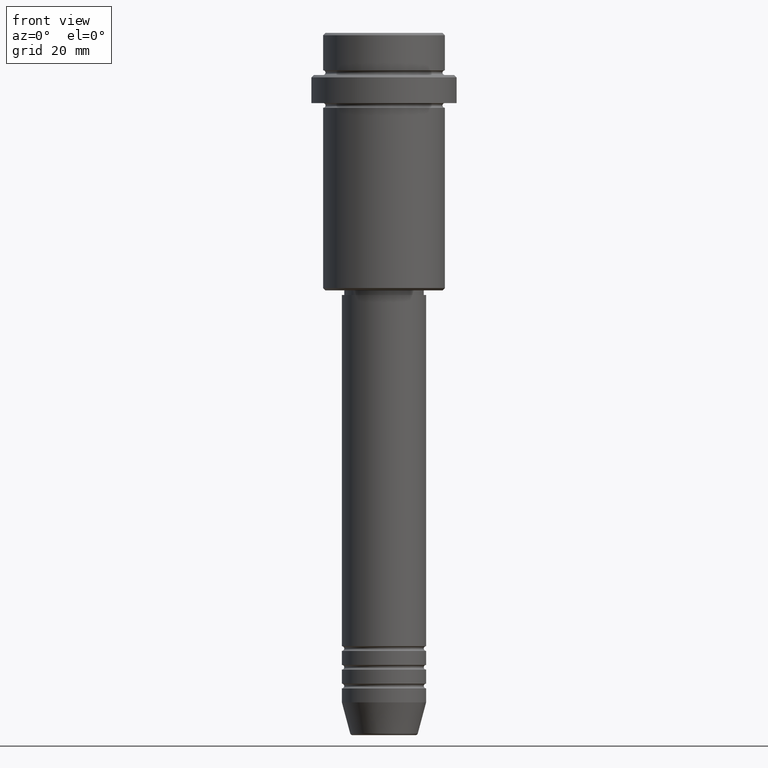
[diagram: clean part render]
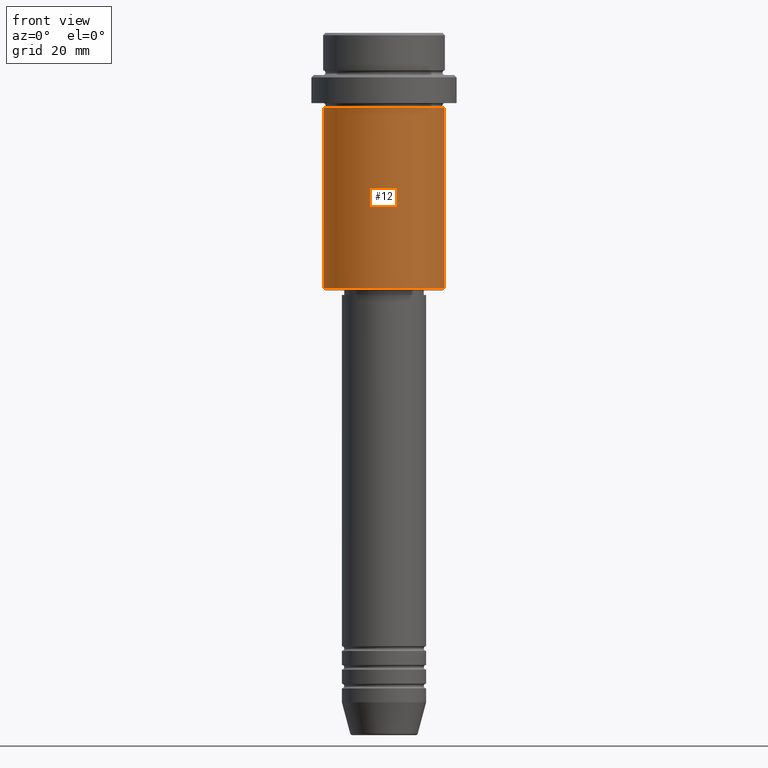
[diagram: same view with one face highlighted and labeled with its STEP entity id]
A machine part, front view. The second image highlights one B-rep face of the part: STEP entity #12.
In plain terms, the highlighted cylindrical surface (partial cylindrical patch) has radius 13 mm, axis along (-0, -0, 1).
Its self-contained STEP definition (entity closure, byte-faithful):
#3 = CARTESIAN_POINT ( 'NONE',  ( 0.000000000000000000, 0.000000000000000000, -15.99999999999997335 ) ) ;
#12 = ADVANCED_FACE ( 'NONE', ( #411 ), #308, .T. ) ;
#64 = VERTEX_POINT ( 'NONE', #587 ) ;
#106 = EDGE_CURVE ( 'NONE', #736, #947, #441, .T. ) ;
#116 = EDGE_CURVE ( 'NONE', #64, #736, #504, .T. ) ;
#170 = CARTESIAN_POINT ( 'NONE',  ( 0.000000000000000000, 0.000000000000000000, -54.49999999999996447 ) ) ;
#255 = VECTOR ( 'NONE', #597, 1000.000000000000000 ) ;
#261 = DIRECTION ( 'NONE',  ( -1.000000000000000000, 0.000000000000000000, 0.000000000000000000 ) ) ;
#287 = DIRECTION ( 'NONE',  ( -0.000000000000000000, -0.000000000000000000, 1.000000000000000000 ) ) ;
#308 = CYLINDRICAL_SURFACE ( 'NONE', #1208, 13.00000000000000000 ) ;
#342 = DIRECTION ( 'NONE',  ( 1.000000000000000000, 0.000000000000000000, 0.000000000000000000 ) ) ;
#360 = CARTESIAN_POINT ( 'NONE',  ( 0.000000000000000000, 0.000000000000000000, 0.000000000000000000 ) ) ;
#411 = FACE_OUTER_BOUND ( 'NONE', #1395, .T. ) ;
#441 = LINE ( 'NONE', #942, #1001 ) ;
#504 = CIRCLE ( 'NONE', #609, 13.00000000000000000 ) ;
#535 = CARTESIAN_POINT ( 'NONE',  ( -13.00000000000000000, 1.592040838891559095E-15, -15.99999999999997335 ) ) ;
#553 = ORIENTED_EDGE ( 'NONE', *, *, #116, .T. ) ;
#587 = CARTESIAN_POINT ( 'NONE',  ( -13.00000000000000000, 1.592040838891559095E-15, -54.49999999999996447 ) ) ;
#597 = DIRECTION ( 'NONE',  ( -0.000000000000000000, -0.000000000000000000, 1.000000000000000000 ) ) ;
#609 = AXIS2_PLACEMENT_3D ( 'NONE', #170, #1243, #261 ) ;
#624 = DIRECTION ( 'NONE',  ( -0.000000000000000000, -0.000000000000000000, 1.000000000000000000 ) ) ;
#713 = ORIENTED_EDGE ( 'NONE', *, *, #106, .T. ) ;
#736 = VERTEX_POINT ( 'NONE', #1398 ) ;
#754 = ORIENTED_EDGE ( 'NONE', *, *, #1290, .F. ) ;
#764 = DIRECTION ( 'NONE',  ( 1.000000000000000000, 0.000000000000000000, 0.000000000000000000 ) ) ;
#781 = DIRECTION ( 'NONE',  ( -0.000000000000000000, -0.000000000000000000, 1.000000000000000000 ) ) ;
#891 = AXIS2_PLACEMENT_3D ( 'NONE', #3, #624, #764 ) ;
#942 = CARTESIAN_POINT ( 'NONE',  ( 13.00000000000000000, 0.000000000000000000, 0.000000000000000000 ) ) ;
#947 = VERTEX_POINT ( 'NONE', #1011 ) ;
#1001 = VECTOR ( 'NONE', #287, 1000.000000000000000 ) ;
#1011 = CARTESIAN_POINT ( 'NONE',  ( 13.00000000000000000, 0.000000000000000000, -15.99999999999997335 ) ) ;
#1143 = LINE ( 'NONE', #1272, #255 ) ;
#1208 = AXIS2_PLACEMENT_3D ( 'NONE', #360, #781, #342 ) ;
#1212 = EDGE_CURVE ( 'NONE', #64, #1294, #1143, .T. ) ;
#1243 = DIRECTION ( 'NONE',  ( -0.000000000000000000, -0.000000000000000000, 1.000000000000000000 ) ) ;
#1261 = CIRCLE ( 'NONE', #891, 13.00000000000000000 ) ;
#1268 = ORIENTED_EDGE ( 'NONE', *, *, #1212, .F. ) ;
#1272 = CARTESIAN_POINT ( 'NONE',  ( -13.00000000000000000, 1.592040838891559095E-15, 0.000000000000000000 ) ) ;
#1290 = EDGE_CURVE ( 'NONE', #1294, #947, #1261, .T. ) ;
#1294 = VERTEX_POINT ( 'NONE', #535 ) ;
#1395 = EDGE_LOOP ( 'NONE', ( #1268, #553, #713, #754 ) ) ;
#1398 = CARTESIAN_POINT ( 'NONE',  ( 13.00000000000000000, 0.000000000000000000, -54.49999999999996447 ) ) ;